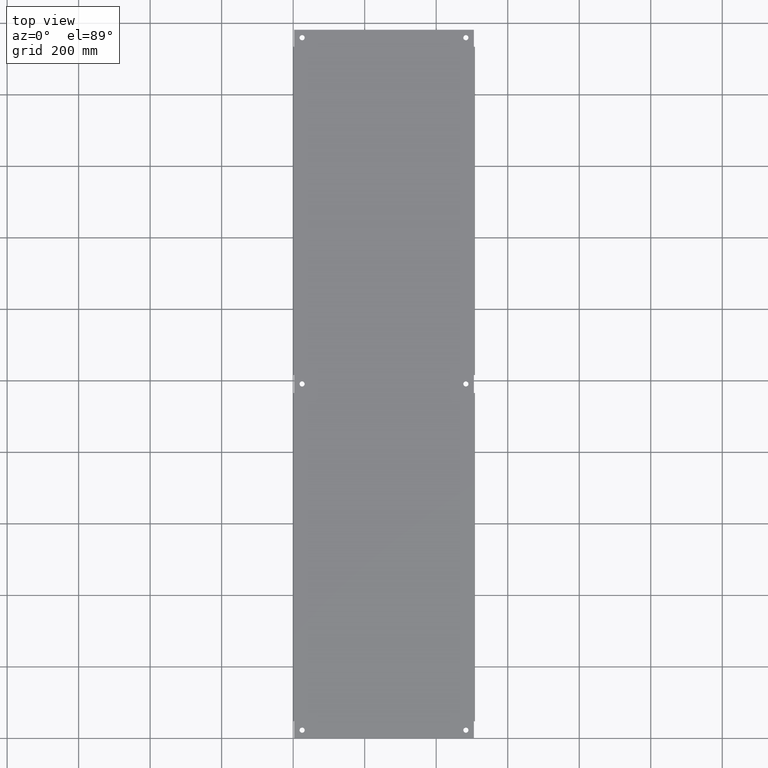
[diagram: clean part render]
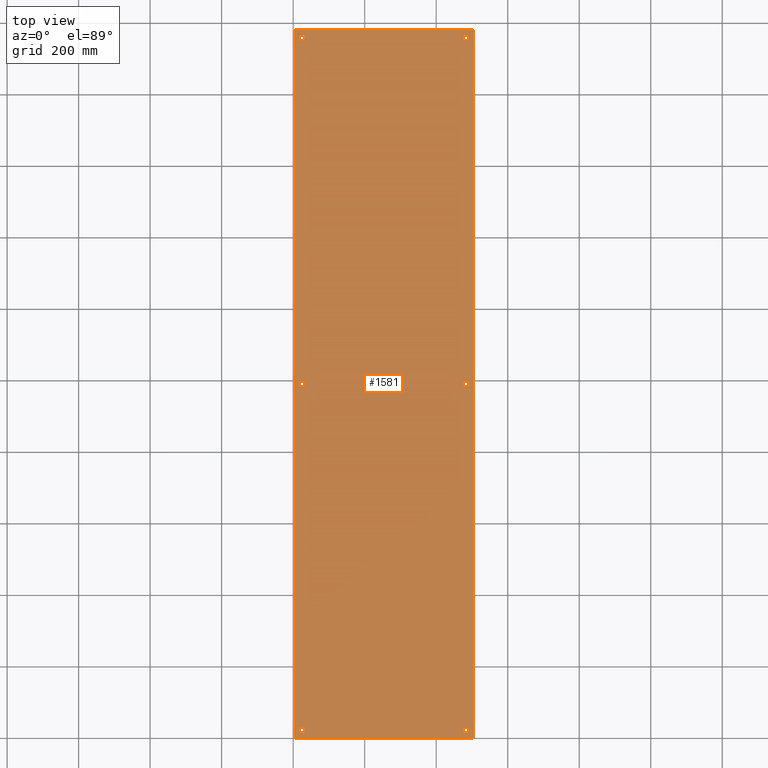
[diagram: same view with one face highlighted and labeled with its STEP entity id]
A machine part, top view. The second image highlights one B-rep face of the part: STEP entity #1581.
In plain terms, the highlighted planar face has unit normal (0, 0, 1).
Its self-contained STEP definition (entity closure, byte-faithful):
#79=CARTESIAN_POINT('',(19.297299999999954,39.0,0.09375));
#80=VERTEX_POINT('',#79);
#81=CARTESIAN_POINT('',(19.016049999999954,39.0,0.09375));
#82=DIRECTION('',(0.0,0.0,-1.0));
#83=DIRECTION('',(1.0,0.0,0.0));
#84=AXIS2_PLACEMENT_3D('',#81,#82,#83);
#85=CIRCLE('',#84,0.28125);
#86=EDGE_CURVE('',#80,#80,#85,.T.);
#107=CARTESIAN_POINT('',(1.264999999999953,39.0,0.09375));
#108=VERTEX_POINT('',#107);
#109=CARTESIAN_POINT('',(0.983749999999953,39.0,0.09375));
#110=DIRECTION('',(0.0,0.0,-1.0));
#111=DIRECTION('',(1.0,0.0,0.0));
#112=AXIS2_PLACEMENT_3D('',#109,#110,#111);
#113=CIRCLE('',#112,0.28125);
#114=EDGE_CURVE('',#108,#108,#113,.T.);
#135=CARTESIAN_POINT('',(19.297299999999954,0.874999999999999,0.09375));
#136=VERTEX_POINT('',#135);
#137=CARTESIAN_POINT('',(19.016049999999954,0.874999999999999,0.09375));
#138=DIRECTION('',(0.0,0.0,-1.0));
#139=DIRECTION('',(1.0,0.0,0.0));
#140=AXIS2_PLACEMENT_3D('',#137,#138,#139);
#141=CIRCLE('',#140,0.28125);
#142=EDGE_CURVE('',#136,#136,#141,.T.);
#163=CARTESIAN_POINT('',(1.264999999999952,0.874999999999999,0.09375));
#164=VERTEX_POINT('',#163);
#165=CARTESIAN_POINT('',(0.983749999999953,0.874999999999999,0.09375));
#166=DIRECTION('',(0.0,0.0,-1.0));
#167=DIRECTION('',(1.0,0.0,0.0));
#168=AXIS2_PLACEMENT_3D('',#165,#166,#167);
#169=CIRCLE('',#168,0.28125);
#170=EDGE_CURVE('',#164,#164,#169,.T.);
#191=CARTESIAN_POINT('',(19.297299999999954,77.125000000000014,0.09375));
#192=VERTEX_POINT('',#191);
#193=CARTESIAN_POINT('',(19.016049999999954,77.125000000000014,0.09375));
#194=DIRECTION('',(0.0,0.0,-1.0));
#195=DIRECTION('',(1.0,0.0,0.0));
#196=AXIS2_PLACEMENT_3D('',#193,#194,#195);
#197=CIRCLE('',#196,0.28125);
#198=EDGE_CURVE('',#192,#192,#197,.T.);
#219=CARTESIAN_POINT('',(1.264999999999953,77.125000000000014,0.09375));
#220=VERTEX_POINT('',#219);
#221=CARTESIAN_POINT('',(0.983749999999953,77.125000000000014,0.09375));
#222=DIRECTION('',(0.0,0.0,-1.0));
#223=DIRECTION('',(1.0,0.0,0.0));
#224=AXIS2_PLACEMENT_3D('',#221,#222,#223);
#225=CIRCLE('',#224,0.28125);
#226=EDGE_CURVE('',#220,#220,#225,.T.);
#258=CARTESIAN_POINT('',(0.108749999999954,40.0,0.09375));
#259=VERTEX_POINT('',#258);
#340=CARTESIAN_POINT('',(0.108749999999954,37.999999999999993,0.09375));
#341=VERTEX_POINT('',#340);
#370=CARTESIAN_POINT('',(0.108749999999965,40.0,0.09375));
#371=DIRECTION('',(0.0,-1.0,0.0));
#372=VECTOR('',#371,2.000000000000007);
#373=LINE('',#370,#372);
#374=EDGE_CURVE('',#259,#341,#373,.T.);
#554=CARTESIAN_POINT('',(0.108749999999976,1.874999999999999,0.09375));
#555=VERTEX_POINT('',#554);
#563=CARTESIAN_POINT('',(0.108749999999966,37.999999999999993,0.09375));
#564=DIRECTION('',(0.0,-1.0,0.0));
#565=VECTOR('',#564,36.125);
#566=LINE('',#563,#565);
#567=EDGE_CURVE('',#341,#555,#566,.T.);
#604=CARTESIAN_POINT('',(19.89105,40.000000000000007,0.09375));
#605=VERTEX_POINT('',#604);
#612=CARTESIAN_POINT('',(19.89105,38.0,0.09375));
#613=VERTEX_POINT('',#612);
#614=CARTESIAN_POINT('',(19.891050000000003,38.0,0.09375));
#615=DIRECTION('',(0.0,1.0,0.0));
#616=VECTOR('',#615,2.0);
#617=LINE('',#614,#616);
#618=EDGE_CURVE('',#613,#605,#617,.T.);
#643=CARTESIAN_POINT('',(19.891249999999982,38.0,0.09375));
#644=VERTEX_POINT('',#643);
#645=CARTESIAN_POINT('',(19.891249999999982,38.0,0.09375));
#646=DIRECTION('',(-1.0,0.0,0.0));
#647=VECTOR('',#646,0.000199999999982);
#648=LINE('',#645,#647);
#649=EDGE_CURVE('',#644,#613,#648,.T.);
#740=CARTESIAN_POINT('',(19.891249999999982,40.000000000000007,0.09375));
#741=VERTEX_POINT('',#740);
#749=CARTESIAN_POINT('',(19.89105,40.000000000000007,0.09375));
#750=DIRECTION('',(1.0,0.0,0.0));
#751=VECTOR('',#750,0.000199999999982);
#752=LINE('',#749,#751);
#753=EDGE_CURVE('',#605,#741,#752,.T.);
#970=CARTESIAN_POINT('',(19.891250000000014,1.875000000000018,0.09375));
#971=VERTEX_POINT('',#970);
#972=CARTESIAN_POINT('',(19.891250000000014,1.875000000000018,0.09375));
#973=DIRECTION('',(0.0,1.0,0.0));
#974=VECTOR('',#973,36.124999999999986);
#975=LINE('',#972,#974);
#976=EDGE_CURVE('',#971,#644,#975,.T.);
#1010=CARTESIAN_POINT('',(19.891250000000003,76.125000000000014,0.09375));
#1011=VERTEX_POINT('',#1010);
#1019=CARTESIAN_POINT('',(19.891250000000007,40.0,0.09375));
#1020=DIRECTION('',(0.0,1.0,0.0));
#1021=VECTOR('',#1020,36.125);
#1022=LINE('',#1019,#1021);
#1023=EDGE_CURVE('',#741,#1011,#1022,.T.);
#1074=CARTESIAN_POINT('',(19.891250000000014,1.874800000000018,0.09375));
#1075=VERTEX_POINT('',#1074);
#1082=CARTESIAN_POINT('',(19.891250000000014,-1.331803E-017,0.09375));
#1083=VERTEX_POINT('',#1082);
#1084=CARTESIAN_POINT('',(19.891250000000014,0.0,0.09375));
#1085=DIRECTION('',(0.0,1.0,0.0));
#1086=VECTOR('',#1085,1.874800000000015);
#1087=LINE('',#1084,#1086);
#1088=EDGE_CURVE('',#1083,#1075,#1087,.T.);
#1105=CARTESIAN_POINT('',(0.108749999999953,76.125199999999992,0.09375));
#1106=VERTEX_POINT('',#1105);
#1113=CARTESIAN_POINT('',(0.108749999999953,78.0,0.09375));
#1114=VERTEX_POINT('',#1113);
#1115=CARTESIAN_POINT('',(0.108749999999953,78.0,0.09375));
#1116=DIRECTION('',(0.0,-1.0,0.0));
#1117=VECTOR('',#1116,1.874800000000008);
#1118=LINE('',#1115,#1117);
#1119=EDGE_CURVE('',#1114,#1106,#1118,.T.);
#1138=CARTESIAN_POINT('',(19.891050000000014,1.874800000000018,0.09375));
#1139=VERTEX_POINT('',#1138);
#1146=CARTESIAN_POINT('',(19.891250000000017,1.874800000000019,0.09375));
#1147=DIRECTION('',(-1.0,0.0,0.0));
#1148=VECTOR('',#1147,0.000200000000003);
#1149=LINE('',#1146,#1148);
#1150=EDGE_CURVE('',#1075,#1139,#1149,.T.);
#1160=CARTESIAN_POINT('',(19.89105,78.0,0.09375));
#1161=VERTEX_POINT('',#1160);
#1170=CARTESIAN_POINT('',(0.108749999999954,78.0,0.09375));
#1171=DIRECTION('',(1.0,0.0,0.0));
#1172=VECTOR('',#1171,19.782300000000046);
#1173=LINE('',#1170,#1172);
#1174=EDGE_CURVE('',#1114,#1161,#1173,.T.);
#1212=CARTESIAN_POINT('',(0.108749999999953,76.125,0.09375));
#1213=VERTEX_POINT('',#1212);
#1221=CARTESIAN_POINT('',(0.108949999999953,76.125,0.09375));
#1222=VERTEX_POINT('',#1221);
#1223=CARTESIAN_POINT('',(0.108949999999953,76.125,0.09375));
#1224=DIRECTION('',(-1.0,0.0,0.0));
#1225=VECTOR('',#1224,0.0002);
#1226=LINE('',#1223,#1225);
#1227=EDGE_CURVE('',#1222,#1213,#1226,.T.);
#1250=CARTESIAN_POINT('',(0.108949999999976,1.874999999999999,0.09375));
#1251=VERTEX_POINT('',#1250);
#1258=CARTESIAN_POINT('',(0.108749999999977,1.875000000000001,0.09375));
#1259=DIRECTION('',(1.0,0.0,0.0));
#1260=VECTOR('',#1259,0.0002);
#1261=LINE('',#1258,#1260);
#1262=EDGE_CURVE('',#555,#1251,#1261,.T.);
#1273=CARTESIAN_POINT('',(0.108749999999954,76.125,0.09375));
#1274=DIRECTION('',(0.0,-1.0,0.0));
#1275=VECTOR('',#1274,36.125);
#1276=LINE('',#1273,#1275);
#1277=EDGE_CURVE('',#1213,#259,#1276,.T.);
#1290=CARTESIAN_POINT('',(0.108949999999985,0.0,0.09375));
#1291=VERTEX_POINT('',#1290);
#1298=CARTESIAN_POINT('',(0.108949999999975,1.875,0.09375));
#1299=DIRECTION('',(0.0,-1.0,0.0));
#1300=VECTOR('',#1299,1.875);
#1301=LINE('',#1298,#1300);
#1302=EDGE_CURVE('',#1251,#1291,#1301,.T.);
#1315=CARTESIAN_POINT('',(0.108949999999953,76.125199999999992,0.09375));
#1316=VERTEX_POINT('',#1315);
#1317=CARTESIAN_POINT('',(0.108949999999954,76.125199999999992,0.09375));
#1318=DIRECTION('',(0.0,-1.0,0.0));
#1319=VECTOR('',#1318,0.000199999999992);
#1320=LINE('',#1317,#1319);
#1321=EDGE_CURVE('',#1316,#1222,#1320,.T.);
#1340=CARTESIAN_POINT('',(0.108749999999953,76.125199999999992,0.09375));
#1341=DIRECTION('',(1.0,0.0,0.0));
#1342=VECTOR('',#1341,0.0002);
#1343=LINE('',#1340,#1342);
#1344=EDGE_CURVE('',#1106,#1316,#1343,.T.);
#1383=CARTESIAN_POINT('',(19.891050000000014,1.875000000000018,0.09375));
#1384=VERTEX_POINT('',#1383);
#1385=CARTESIAN_POINT('',(19.891050000000014,1.875000000000018,0.09375));
#1386=DIRECTION('',(1.0,0.0,0.0));
#1387=VECTOR('',#1386,0.000200000000003);
#1388=LINE('',#1385,#1387);
#1389=EDGE_CURVE('',#1384,#971,#1388,.T.);
#1465=CARTESIAN_POINT('',(19.89105,76.125000000000014,0.09375));
#1466=VERTEX_POINT('',#1465);
#1473=CARTESIAN_POINT('',(19.891249999999999,76.125000000000014,0.09375));
#1474=DIRECTION('',(-1.0,0.0,0.0));
#1475=VECTOR('',#1474,0.0002);
#1476=LINE('',#1473,#1475);
#1477=EDGE_CURVE('',#1011,#1466,#1476,.T.);
#1502=CARTESIAN_POINT('',(19.891050000000003,76.125000000000014,0.09375));
#1503=DIRECTION('',(0.0,1.0,0.0));
#1504=VECTOR('',#1503,1.874999999999986);
#1505=LINE('',#1502,#1504);
#1506=EDGE_CURVE('',#1466,#1161,#1505,.T.);
#1519=CARTESIAN_POINT('',(19.891050000000014,1.874800000000015,0.09375));
#1520=DIRECTION('',(0.0,1.0,0.0));
#1521=VECTOR('',#1520,0.000200000000003);
#1522=LINE('',#1519,#1521);
#1523=EDGE_CURVE('',#1139,#1384,#1522,.T.);
#1529=CARTESIAN_POINT('',(9.999999999999991,39.0,0.09375));
#1530=DIRECTION('',(0.0,0.0,1.0));
#1531=DIRECTION('',(1.0,0.0,0.0));
#1532=AXIS2_PLACEMENT_3D('',#1529,#1530,#1531);
#1533=PLANE('',#1532);
#1534=ORIENTED_EDGE('',*,*,#753,.T.);
#1535=ORIENTED_EDGE('',*,*,#1023,.T.);
#1536=ORIENTED_EDGE('',*,*,#1477,.T.);
#1537=ORIENTED_EDGE('',*,*,#1506,.T.);
#1538=ORIENTED_EDGE('',*,*,#1174,.F.);
#1539=ORIENTED_EDGE('',*,*,#1119,.T.);
#1540=ORIENTED_EDGE('',*,*,#1344,.T.);
#1541=ORIENTED_EDGE('',*,*,#1321,.T.);
#1542=ORIENTED_EDGE('',*,*,#1227,.T.);
#1543=ORIENTED_EDGE('',*,*,#1277,.T.);
#1544=ORIENTED_EDGE('',*,*,#374,.T.);
#1545=ORIENTED_EDGE('',*,*,#567,.T.);
#1546=ORIENTED_EDGE('',*,*,#1262,.T.);
#1547=ORIENTED_EDGE('',*,*,#1302,.T.);
#1548=CARTESIAN_POINT('',(19.891250000000014,0.0,0.09375));
#1549=DIRECTION('',(-1.0,0.0,0.0));
#1550=VECTOR('',#1549,19.782300000000028);
#1551=LINE('',#1548,#1550);
#1552=EDGE_CURVE('',#1083,#1291,#1551,.T.);
#1553=ORIENTED_EDGE('',*,*,#1552,.F.);
#1554=ORIENTED_EDGE('',*,*,#1088,.T.);
#1555=ORIENTED_EDGE('',*,*,#1150,.T.);
#1556=ORIENTED_EDGE('',*,*,#1523,.T.);
#1557=ORIENTED_EDGE('',*,*,#1389,.T.);
#1558=ORIENTED_EDGE('',*,*,#976,.T.);
#1559=ORIENTED_EDGE('',*,*,#649,.T.);
#1560=ORIENTED_EDGE('',*,*,#618,.T.);
#1561=EDGE_LOOP('',(#1534,#1535,#1536,#1537,#1538,#1539,#1540,#1541,#1542,#1543,#1544,#1545,#1546,#1547,#1553,#1554,#1555,#1556,#1557,#1558,#1559,#1560));
#1562=FACE_OUTER_BOUND('',#1561,.T.);
#1563=ORIENTED_EDGE('',*,*,#86,.T.);
#1564=EDGE_LOOP('',(#1563));
#1565=FACE_BOUND('',#1564,.T.);
#1566=ORIENTED_EDGE('',*,*,#114,.T.);
#1567=EDGE_LOOP('',(#1566));
#1568=FACE_BOUND('',#1567,.T.);
#1569=ORIENTED_EDGE('',*,*,#142,.T.);
#1570=EDGE_LOOP('',(#1569));
#1571=FACE_BOUND('',#1570,.T.);
#1572=ORIENTED_EDGE('',*,*,#170,.T.);
#1573=EDGE_LOOP('',(#1572));
#1574=FACE_BOUND('',#1573,.T.);
#1575=ORIENTED_EDGE('',*,*,#198,.T.);
#1576=EDGE_LOOP('',(#1575));
#1577=FACE_BOUND('',#1576,.T.);
#1578=ORIENTED_EDGE('',*,*,#226,.T.);
#1579=EDGE_LOOP('',(#1578));
#1580=FACE_BOUND('',#1579,.T.);
#1581=ADVANCED_FACE('',(#1562,#1565,#1568,#1571,#1574,#1577,#1580),#1533,.T.);